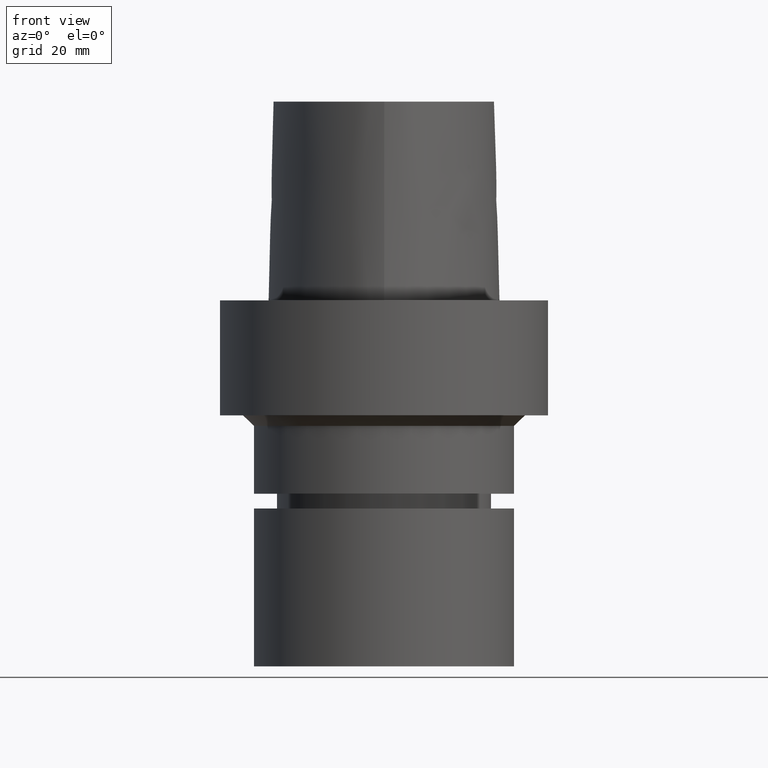
[diagram: clean part render]
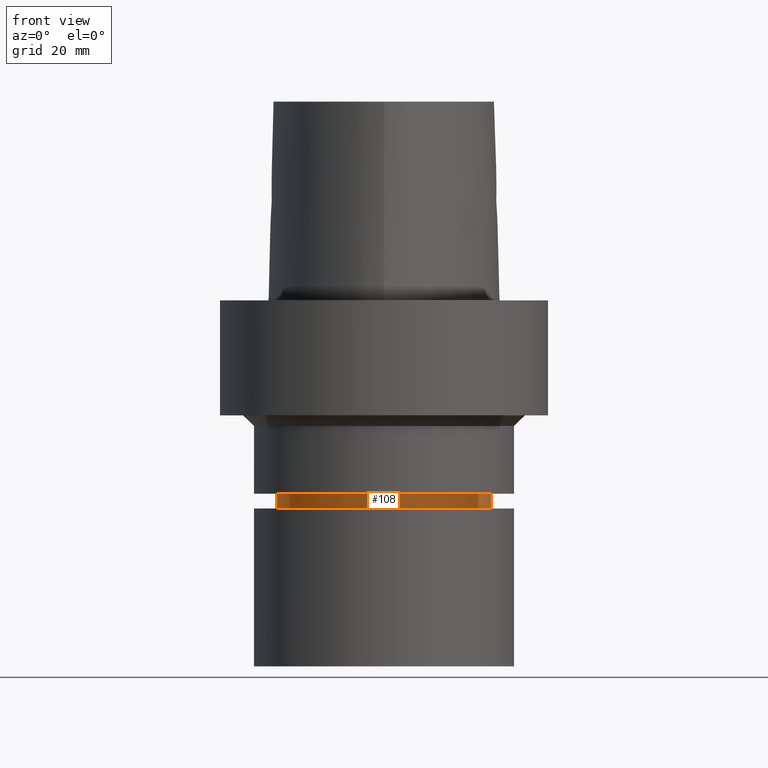
[diagram: same view with one face highlighted and labeled with its STEP entity id]
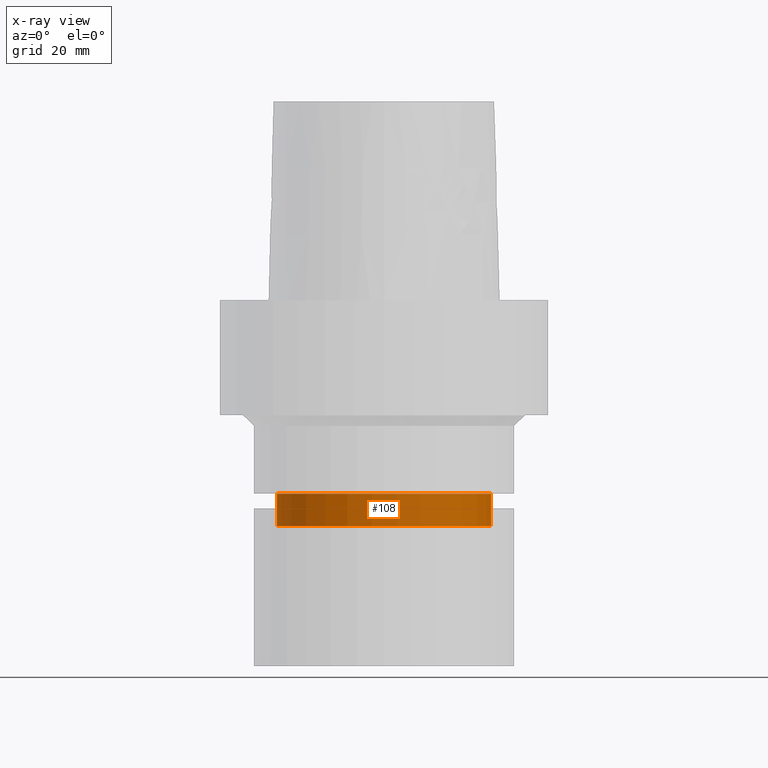
[diagram: x-ray of the same camera — body ghosted, the highlighted face saturated]
A machine part, front view. The second image highlights one B-rep face of the part: STEP entity #108.
The next image is the same camera in x-ray: the body ghosted, the highlighted face saturated — about 0% of this face is hidden behind the body in this view.
In plain terms, the highlighted cylindrical surface (bore or boss wall) has radius 20.5 mm, axis along (0, 0, -1).
Its self-contained STEP definition (entity closure, byte-faithful):
#108=ADVANCED_FACE('Unnamed[1]',(#244,#245),#246,.T.);
#148=EDGE_CURVE('Unnamed[1]',#302,#302,#303,.T.);
#150=EDGE_CURVE('Unnamed[1]',#305,#305,#306,.T.);
#244=FACE_BOUND('',#505,.T.);
#245=FACE_BOUND('',#506,.T.);
#246=CYLINDRICAL_SURFACE('',#507,20.4999999999961);
#302=VERTEX_POINT('',#678);
#303=CIRCLE('',#679,20.4999999999911);
#305=VERTEX_POINT('',#682);
#306=CIRCLE('',#683,20.5000000000012);
#505=EDGE_LOOP('',(#786));
#506=EDGE_LOOP('',(#787));
#507=AXIS2_PLACEMENT_3D('',#788,#789,#790);
#678=CARTESIAN_POINT('',(2.26560622676593E-015,20.4999999999911,-37.0001575694042));
#679=AXIS2_PLACEMENT_3D('',#850,#851,#852);
#682=CARTESIAN_POINT('',(2.64594018250956E-015,20.5000000000012,-43.211482434801));
#683=AXIS2_PLACEMENT_3D('',#853,#854,#855);
#786=ORIENTED_EDGE('',*,*,#150,.F.);
#787=ORIENTED_EDGE('',*,*,#148,.T.);
#788=CARTESIAN_POINT('',(2.45577320463774E-015,4.91154640927548E-015,-40.1058200021026));
#789=DIRECTION('',(6.12323399573677E-017,1.22464679914735E-016,-1.0));
#790=DIRECTION('',(-1.23259516440783E-032,1.0,1.22464679914735E-016));
#850=CARTESIAN_POINT('',(2.26560622676593E-015,4.53121245353186E-015,-37.0001575694042));
#851=DIRECTION('',(6.12323399573677E-017,1.22464679914735E-016,-1.0));
#852=DIRECTION('',(-1.23259516440783E-032,1.0,1.22464679914735E-016));
#853=CARTESIAN_POINT('',(2.64594018250956E-015,5.29188036501911E-015,-43.211482434801));
#854=DIRECTION('',(6.12323399573677E-017,1.22464679914735E-016,-1.0));
#855=DIRECTION('',(-1.23259516440783E-032,1.0,1.22464679914735E-016));